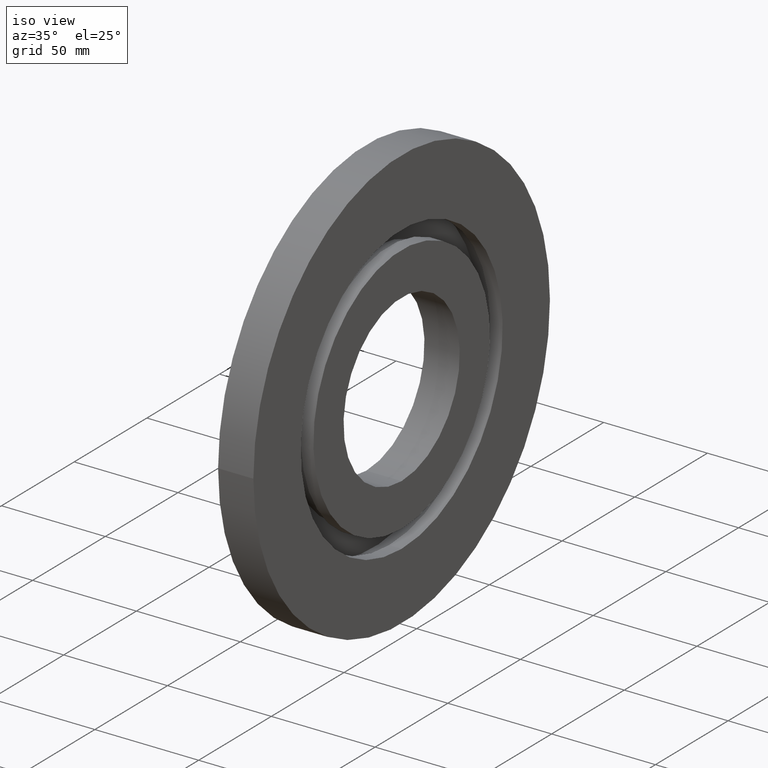
[diagram: clean part render]
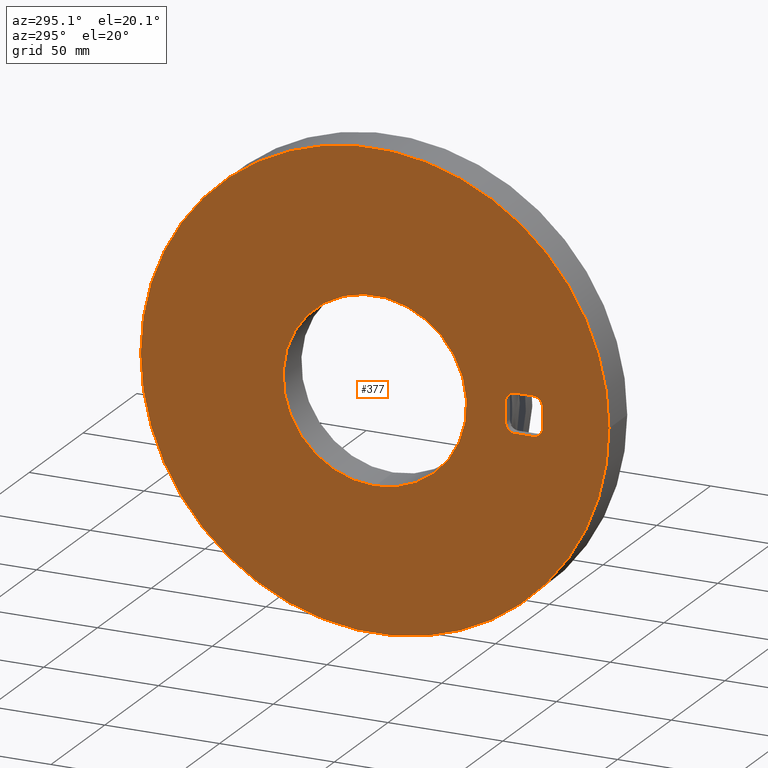
[diagram: tour spotlight — one face highlighted and labeled with its STEP entity id]
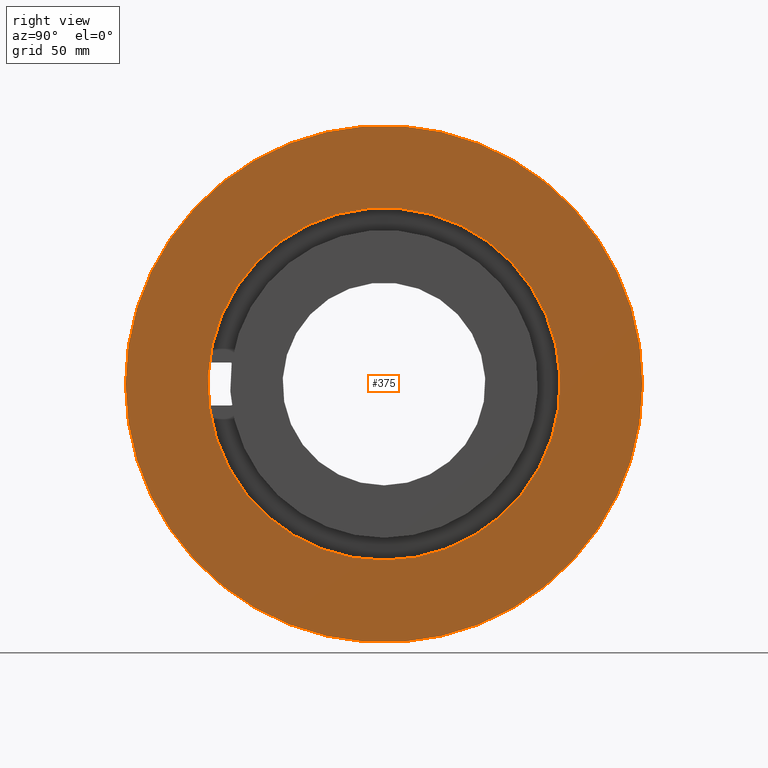
[diagram: tour spotlight — one face highlighted and labeled with its STEP entity id]
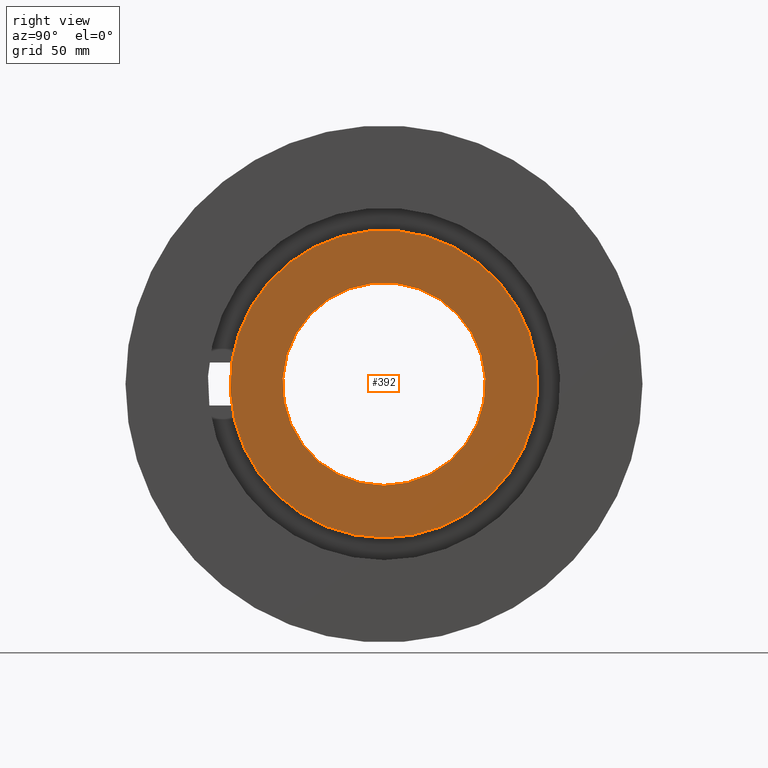
[diagram: tour spotlight — one face highlighted and labeled with its STEP entity id]
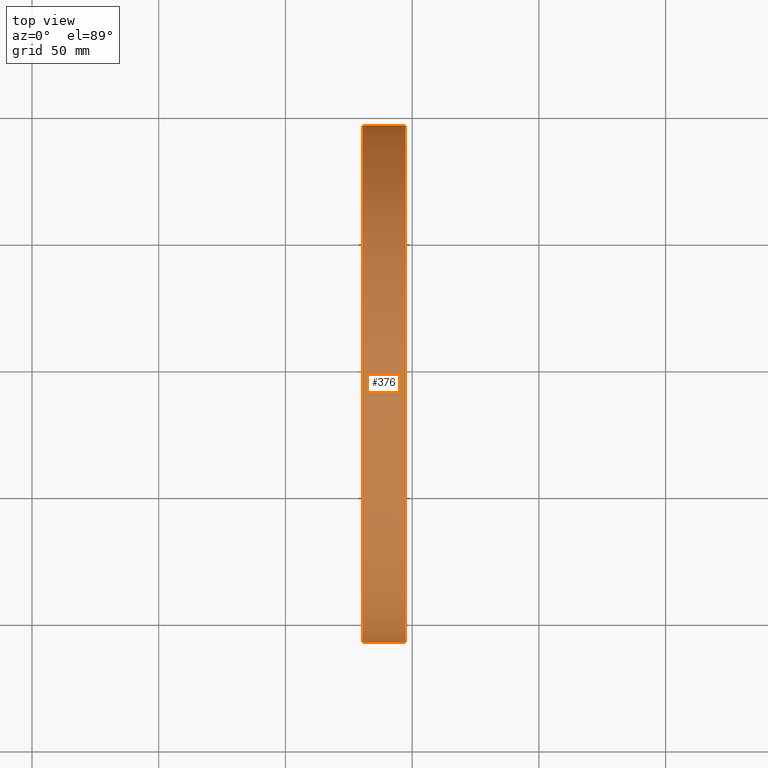
[diagram: tour spotlight — one face highlighted and labeled with its STEP entity id]
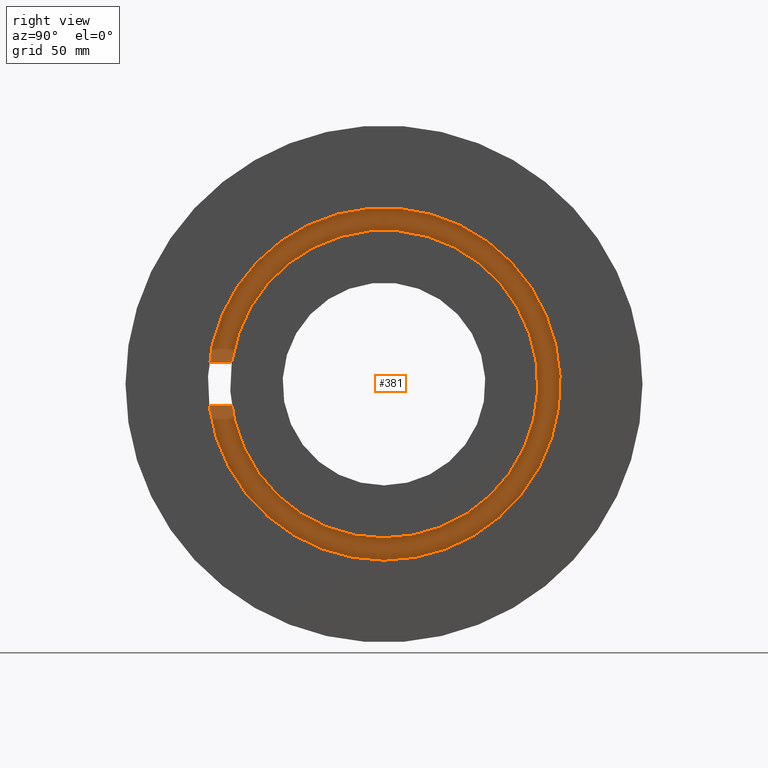
[diagram: tour spotlight — one face highlighted and labeled with its STEP entity id]
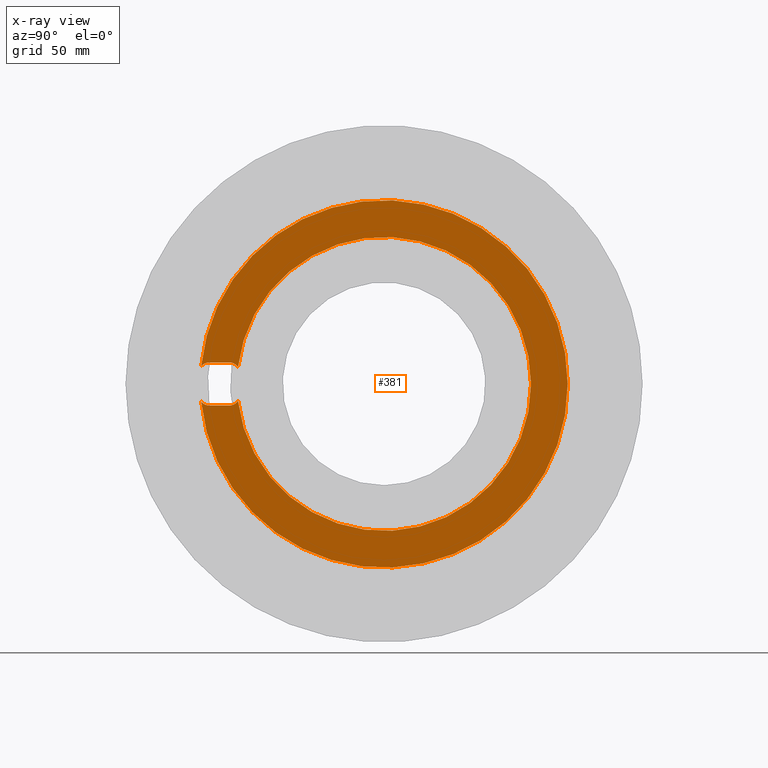
[diagram: x-ray of the same camera — body ghosted, this tour face saturated]
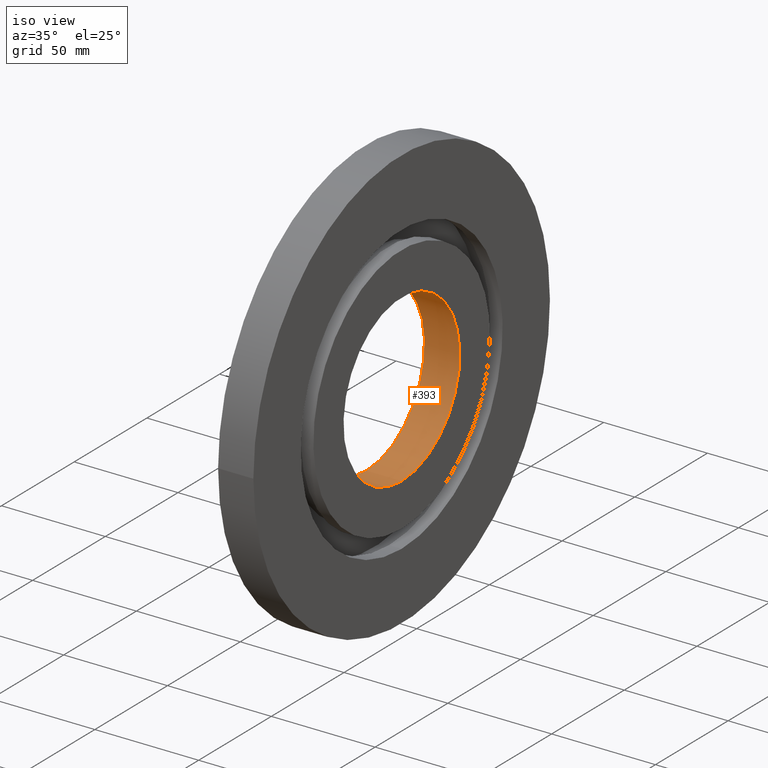
[diagram: tour spotlight — one face highlighted and labeled with its STEP entity id]
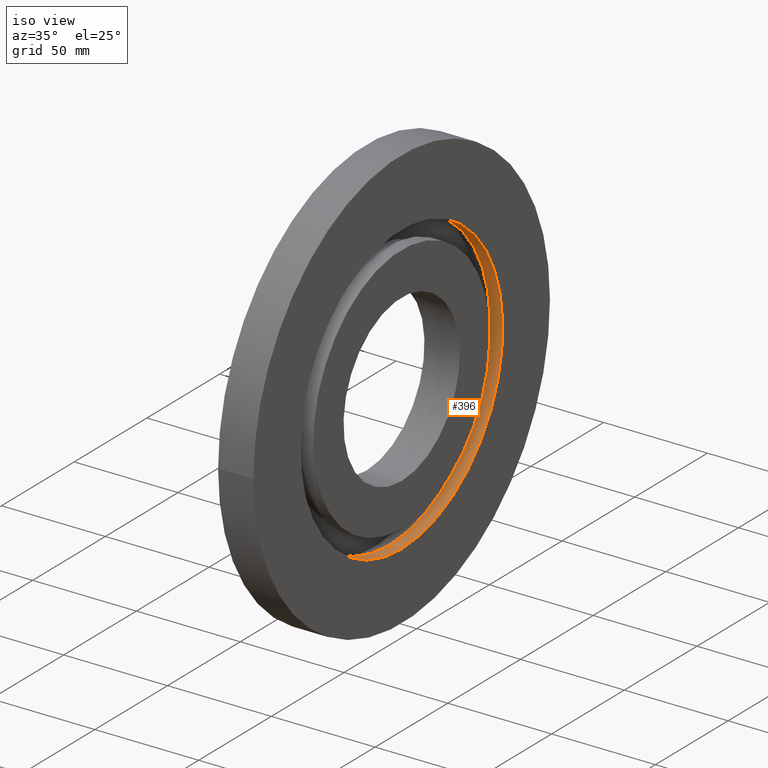
[diagram: tour spotlight — one face highlighted and labeled with its STEP entity id]
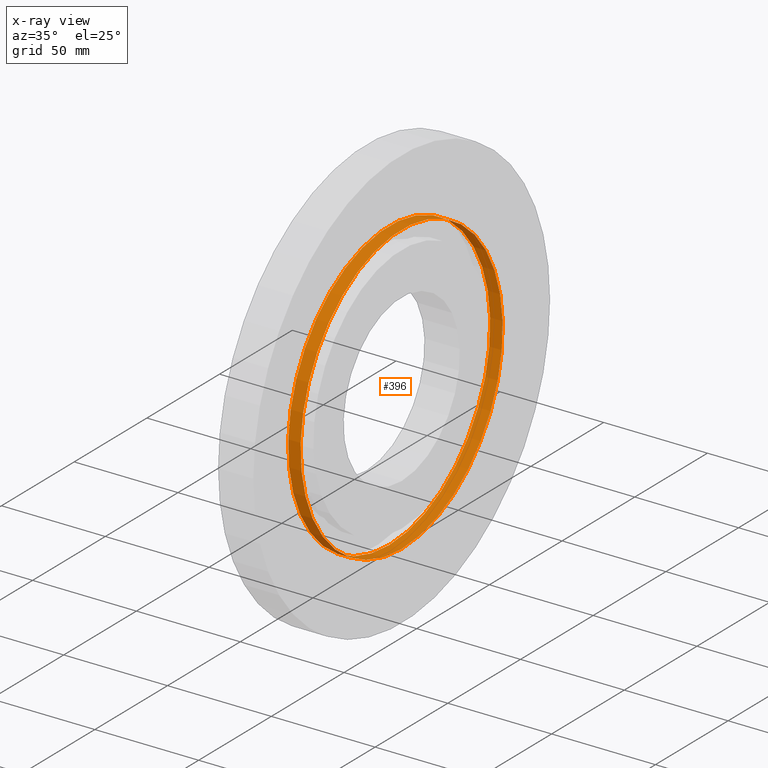
[diagram: x-ray of the same camera — body ghosted, this tour face saturated]
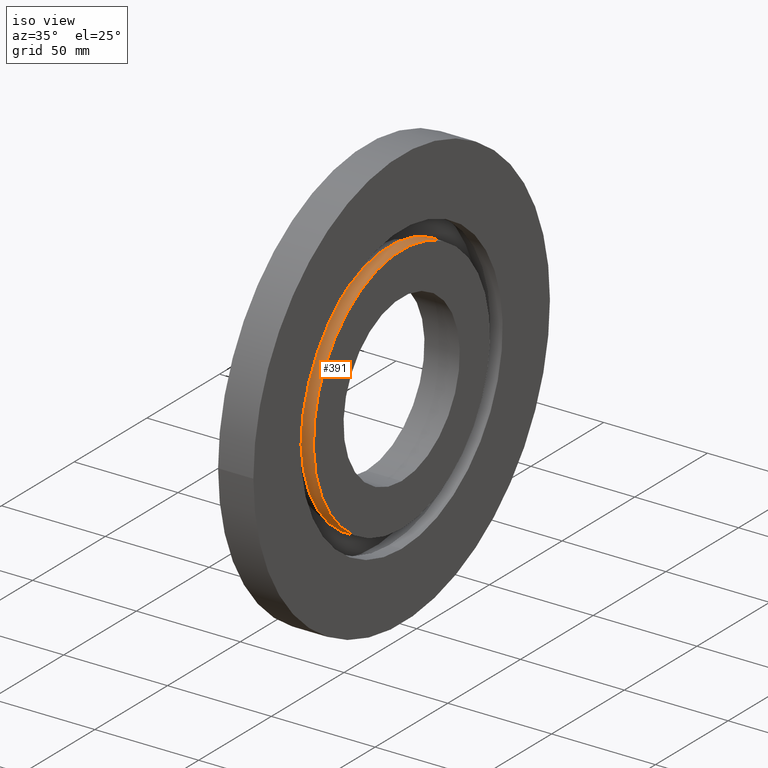
[diagram: tour spotlight — one face highlighted and labeled with its STEP entity id]
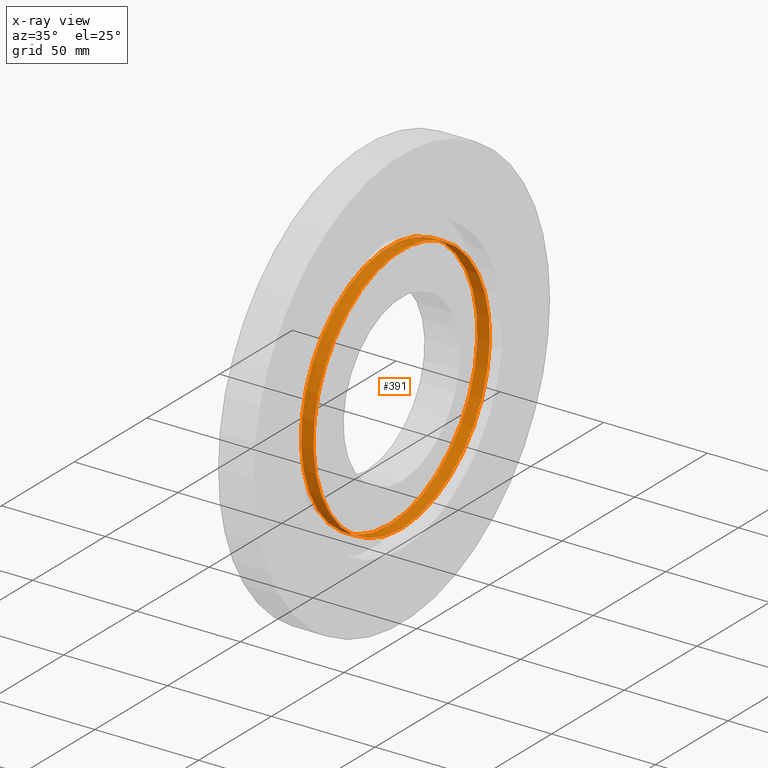
[diagram: x-ray of the same camera — body ghosted, this tour face saturated]
A machine part: a face-by-face anatomy tour. The part has 22 B-rep faces; the first image is the clean iso view, then the 8 largest visible faces are spotlighted one at a time (largest first), each with its STEP entity span.

Face 1 — auxiliary view, entity #377. In plain terms, the highlighted planar face has unit normal (-1, 0, 0).
Definition (entity closure, byte-faithful):
#20=LINE('',#630,#46);
#21=LINE('',#634,#47);
#22=LINE('',#638,#48);
#23=LINE('',#642,#49);
#46=VECTOR('',#501,8.);
#47=VECTOR('',#504,9.);
#48=VECTOR('',#507,8.);
#49=VECTOR('',#510,9.);
#82=FACE_BOUND('',#113,.T.);
#83=FACE_BOUND('',#114,.T.);
#89=FACE_OUTER_BOUND('',#112,.T.);
#112=EDGE_LOOP('',(#261));
#113=EDGE_LOOP('',(#262,#263,#264,#265,#266,#267,#268,#269));
#114=EDGE_LOOP('',(#270));
#139=CIRCLE('',#437,102.);
#140=CIRCLE('',#439,4.);
#141=CIRCLE('',#440,4.);
#142=CIRCLE('',#441,4.);
#143=CIRCLE('',#442,4.);
#144=CIRCLE('',#443,40.);
#167=VERTEX_POINT('',#624);
#168=VERTEX_POINT('',#628);
#169=VERTEX_POINT('',#629);
#170=VERTEX_POINT('',#631);
#171=VERTEX_POINT('',#633);
#172=VERTEX_POINT('',#635);
#173=VERTEX_POINT('',#637);
#174=VERTEX_POINT('',#639);
#175=VERTEX_POINT('',#641);
#176=VERTEX_POINT('',#644);
#203=EDGE_CURVE('',#167,#167,#139,.T.);
#205=EDGE_CURVE('',#168,#169,#20,.T.);
#206=EDGE_CURVE('',#168,#170,#140,.T.);
#207=EDGE_CURVE('',#171,#170,#21,.T.);
#208=EDGE_CURVE('',#171,#172,#141,.T.);
#209=EDGE_CURVE('',#173,#172,#22,.T.);
#210=EDGE_CURVE('',#173,#174,#142,.T.);
#211=EDGE_CURVE('',#175,#174,#23,.T.);
#212=EDGE_CURVE('',#175,#169,#143,.T.);
#213=EDGE_CURVE('',#176,#176,#144,.T.);
#261=ORIENTED_EDGE('',*,*,#203,.F.);
#262=ORIENTED_EDGE('',*,*,#205,.F.);
#263=ORIENTED_EDGE('',*,*,#206,.T.);
#264=ORIENTED_EDGE('',*,*,#207,.F.);
#265=ORIENTED_EDGE('',*,*,#208,.T.);
#266=ORIENTED_EDGE('',*,*,#209,.F.);
#267=ORIENTED_EDGE('',*,*,#210,.T.);
#268=ORIENTED_EDGE('',*,*,#211,.F.);
#269=ORIENTED_EDGE('',*,*,#212,.T.);
#270=ORIENTED_EDGE('',*,*,#213,.T.);
#364=PLANE('',#438);
#377=ADVANCED_FACE('',(#89,#82,#83),#364,.T.);
#437=AXIS2_PLACEMENT_3D('',#625,#496,#497);
#438=AXIS2_PLACEMENT_3D('',#627,#499,#500);
#439=AXIS2_PLACEMENT_3D('',#632,#502,#503);
#440=AXIS2_PLACEMENT_3D('',#636,#505,#506);
#441=AXIS2_PLACEMENT_3D('',#640,#508,#509);
#442=AXIS2_PLACEMENT_3D('',#643,#511,#512);
#443=AXIS2_PLACEMENT_3D('',#645,#513,#514);
#496=DIRECTION('center_axis',(1.,0.,0.));
#497=DIRECTION('ref_axis',(0.,1.,0.));
#499=DIRECTION('center_axis',(-1.,0.,0.));
#500=DIRECTION('ref_axis',(0.,0.,1.));
#501=DIRECTION('',(0.,1.,0.));
#502=DIRECTION('center_axis',(1.,0.,0.));
#503=DIRECTION('ref_axis',(0.,0.,1.));
#504=DIRECTION('',(0.,0.,1.));
#505=DIRECTION('center_axis',(1.,0.,0.));
#506=DIRECTION('ref_axis',(0.,-1.,0.));
#507=DIRECTION('',(0.,-1.,0.));
#508=DIRECTION('center_axis',(1.,0.,0.));
#509=DIRECTION('ref_axis',(0.,0.,-1.));
#510=DIRECTION('',(0.,0.,-1.));
#511=DIRECTION('center_axis',(1.,0.,0.));
#512=DIRECTION('ref_axis',(0.,1.,0.));
#513=DIRECTION('center_axis',(1.,0.,0.));
#514=DIRECTION('ref_axis',(0.,0.,1.));
#624=CARTESIAN_POINT('',(14.,-102.,-1.50990331349E-14));
#625=CARTESIAN_POINT('Origin',(14.,0.,0.));
#627=CARTESIAN_POINT('Origin',(14.,43.625,0.));
#628=CARTESIAN_POINT('',(14.,-69.,8.5));
#629=CARTESIAN_POINT('',(14.,-61.,8.5));
#630=CARTESIAN_POINT('',(14.,-69.,8.5));
#631=CARTESIAN_POINT('',(14.,-73.,4.5));
#632=CARTESIAN_POINT('Origin',(14.,-69.,4.5));
#633=CARTESIAN_POINT('',(14.,-73.,-4.5));
#634=CARTESIAN_POINT('',(14.,-73.,-4.5));
#635=CARTESIAN_POINT('',(14.,-69.,-8.5));
#636=CARTESIAN_POINT('Origin',(14.,-69.,-4.5));
#637=CARTESIAN_POINT('',(14.,-61.,-8.5));
#638=CARTESIAN_POINT('',(14.,-61.,-8.5));
#639=CARTESIAN_POINT('',(14.,-57.,-4.5));
#640=CARTESIAN_POINT('Origin',(14.,-61.,-4.5));
#641=CARTESIAN_POINT('',(14.,-57.,4.5));
#642=CARTESIAN_POINT('',(14.,-57.,4.5));
#643=CARTESIAN_POINT('Origin',(14.,-61.,4.5));
#644=CARTESIAN_POINT('',(14.,0.,-40.));
#645=CARTESIAN_POINT('Origin',(14.,0.,0.));

Face 2 — right view, entity #375. In plain terms, the highlighted planar face has unit normal (-1, 0, 0).
Definition (entity closure, byte-faithful):
#81=FACE_BOUND('',#110,.T.);
#87=FACE_OUTER_BOUND('',#109,.T.);
#109=EDGE_LOOP('',(#255));
#110=EDGE_LOOP('',(#256));
#137=CIRCLE('',#434,102.);
#138=CIRCLE('',#435,69.5);
#165=VERTEX_POINT('',#619);
#166=VERTEX_POINT('',#621);
#201=EDGE_CURVE('',#165,#165,#137,.T.);
#202=EDGE_CURVE('',#166,#166,#138,.T.);
#255=ORIENTED_EDGE('',*,*,#201,.T.);
#256=ORIENTED_EDGE('',*,*,#202,.T.);
#363=PLANE('',#433);
#375=ADVANCED_FACE('',(#87,#81),#363,.F.);
#433=AXIS2_PLACEMENT_3D('',#618,#488,#489);
#434=AXIS2_PLACEMENT_3D('',#620,#490,#491);
#435=AXIS2_PLACEMENT_3D('',#622,#492,#493);
#488=DIRECTION('center_axis',(-1.,0.,0.));
#489=DIRECTION('ref_axis',(0.,0.,1.));
#490=DIRECTION('center_axis',(1.,0.,0.));
#491=DIRECTION('ref_axis',(0.,1.,0.));
#492=DIRECTION('center_axis',(-1.,0.,0.));
#493=DIRECTION('ref_axis',(0.,0.,-1.));
#618=CARTESIAN_POINT('Origin',(31.,43.625,0.));
#619=CARTESIAN_POINT('',(31.,-102.,-1.50990331349E-14));
#620=CARTESIAN_POINT('Origin',(31.,0.,0.));
#621=CARTESIAN_POINT('',(31.,-8.51129525407411E-15,-69.5));
#622=CARTESIAN_POINT('Origin',(31.,0.,0.));

Face 3 — right view, entity #392. In plain terms, the highlighted planar face has unit normal (-1, 0, 0).
Definition (entity closure, byte-faithful):
#86=FACE_BOUND('',#132,.T.);
#104=FACE_OUTER_BOUND('',#131,.T.);
#131=EDGE_LOOP('',(#345));
#132=EDGE_LOOP('',(#346));
#163=CIRCLE('',#476,60.7);
#164=CIRCLE('',#478,40.);
#199=VERTEX_POINT('',#717);
#200=VERTEX_POINT('',#721);
#250=EDGE_CURVE('',#199,#199,#163,.T.);
#251=EDGE_CURVE('',#200,#200,#164,.T.);
#345=ORIENTED_EDGE('',*,*,#250,.T.);
#346=ORIENTED_EDGE('',*,*,#251,.T.);
#372=PLANE('',#477);
#392=ADVANCED_FACE('',(#104,#86),#372,.F.);
#476=AXIS2_PLACEMENT_3D('',#719,#597,#598);
#477=AXIS2_PLACEMENT_3D('',#720,#599,#600);
#478=AXIS2_PLACEMENT_3D('',#722,#601,#602);
#597=DIRECTION('center_axis',(1.,0.,0.));
#598=DIRECTION('ref_axis',(0.,0.,1.));
#599=DIRECTION('center_axis',(-1.,0.,0.));
#600=DIRECTION('ref_axis',(0.,0.,1.));
#601=DIRECTION('center_axis',(-1.,0.,0.));
#602=DIRECTION('ref_axis',(0.,0.,-1.));
#717=CARTESIAN_POINT('',(31.,0.,-60.7));
#719=CARTESIAN_POINT('Origin',(31.,0.,0.));
#720=CARTESIAN_POINT('Origin',(31.,43.625,0.));
#721=CARTESIAN_POINT('',(31.,0.,-40.));
#722=CARTESIAN_POINT('Origin',(31.,0.,0.));

Face 4 — top view, entity #376. In plain terms, the highlighted cylindrical surface (bore or boss wall) has radius 102 mm, axis along (-1, 0, 0).
Definition (entity closure, byte-faithful):
#19=LINE('',#626,#45);
#45=VECTOR('',#498,102.);
#71=CYLINDRICAL_SURFACE('',#436,102.);
#88=FACE_OUTER_BOUND('',#111,.T.);
#111=EDGE_LOOP('',(#257,#258,#259,#260));
#137=CIRCLE('',#434,102.);
#139=CIRCLE('',#437,102.);
#165=VERTEX_POINT('',#619);
#167=VERTEX_POINT('',#624);
#201=EDGE_CURVE('',#165,#165,#137,.T.);
#203=EDGE_CURVE('',#167,#167,#139,.T.);
#204=EDGE_CURVE('',#167,#165,#19,.T.);
#257=ORIENTED_EDGE('',*,*,#203,.T.);
#258=ORIENTED_EDGE('',*,*,#204,.T.);
#259=ORIENTED_EDGE('',*,*,#201,.F.);
#260=ORIENTED_EDGE('',*,*,#204,.F.);
#376=ADVANCED_FACE('',(#88),#71,.T.);
#434=AXIS2_PLACEMENT_3D('',#620,#490,#491);
#436=AXIS2_PLACEMENT_3D('',#623,#494,#495);
#437=AXIS2_PLACEMENT_3D('',#625,#496,#497);
#490=DIRECTION('center_axis',(1.,0.,0.));
#491=DIRECTION('ref_axis',(0.,1.,0.));
#494=DIRECTION('center_axis',(-1.,0.,0.));
#495=DIRECTION('ref_axis',(0.,1.,0.));
#496=DIRECTION('center_axis',(1.,0.,0.));
#497=DIRECTION('ref_axis',(0.,1.,0.));
#498=DIRECTION('',(1.,0.,0.));
#619=CARTESIAN_POINT('',(31.,-102.,-1.50990331349E-14));
#620=CARTESIAN_POINT('Origin',(31.,0.,0.));
#623=CARTESIAN_POINT('Origin',(303.1531853339,0.,0.));
#624=CARTESIAN_POINT('',(14.,-102.,-1.50990331349E-14));
#625=CARTESIAN_POINT('Origin',(14.,0.,0.));
#626=CARTESIAN_POINT('',(303.1531853339,-102.,1.2491397351303E-14));

Face 5 — right view, entity #381. An x-ray twin of the same camera follows (body ghosted, this face saturated) — the face is partly hidden behind the body. In plain terms, the highlighted planar face has unit normal (1, 0, 0).
Definition (entity closure, byte-faithful):
#25=LINE('',#650,#51);
#31=LINE('',#681,#57);
#51=VECTOR('',#518,8.);
#57=VECTOR('',#550,8.);
#93=FACE_OUTER_BOUND('',#118,.T.);
#118=EDGE_LOOP('',(#289,#290,#291,#292,#293,#294,#295,#296,#297,#298));
#145=CIRCLE('',#446,4.);
#148=CIRCLE('',#450,58.);
#150=CIRCLE('',#452,58.);
#151=CIRCLE('',#454,72.5);
#152=CIRCLE('',#455,72.5);
#153=CIRCLE('',#456,4.);
#154=CIRCLE('',#457,4.);
#155=CIRCLE('',#458,4.);
#177=VERTEX_POINT('',#647);
#178=VERTEX_POINT('',#649);
#180=VERTEX_POINT('',#654);
#183=VERTEX_POINT('',#663);
#185=VERTEX_POINT('',#668);
#186=VERTEX_POINT('',#672);
#187=VERTEX_POINT('',#673);
#188=VERTEX_POINT('',#675);
#189=VERTEX_POINT('',#678);
#190=VERTEX_POINT('',#680);
#215=EDGE_CURVE('',#177,#178,#25,.T.);
#218=EDGE_CURVE('',#177,#180,#145,.T.);
#223=EDGE_CURVE('',#180,#183,#148,.T.);
#226=EDGE_CURVE('',#183,#185,#150,.T.);
#227=EDGE_CURVE('',#186,#187,#151,.T.);
#228=EDGE_CURVE('',#187,#188,#152,.T.);
#229=EDGE_CURVE('',#188,#178,#153,.T.);
#230=EDGE_CURVE('',#185,#189,#154,.T.);
#231=EDGE_CURVE('',#190,#189,#31,.T.);
#232=EDGE_CURVE('',#190,#186,#155,.T.);
#289=ORIENTED_EDGE('',*,*,#227,.T.);
#290=ORIENTED_EDGE('',*,*,#228,.T.);
#291=ORIENTED_EDGE('',*,*,#229,.T.);
#292=ORIENTED_EDGE('',*,*,#215,.F.);
#293=ORIENTED_EDGE('',*,*,#218,.T.);
#294=ORIENTED_EDGE('',*,*,#223,.T.);
#295=ORIENTED_EDGE('',*,*,#226,.T.);
#296=ORIENTED_EDGE('',*,*,#230,.T.);
#297=ORIENTED_EDGE('',*,*,#231,.F.);
#298=ORIENTED_EDGE('',*,*,#232,.T.);
#366=PLANE('',#453);
#381=ADVANCED_FACE('',(#93),#366,.T.);
#446=AXIS2_PLACEMENT_3D('',#656,#523,#524);
#450=AXIS2_PLACEMENT_3D('',#665,#533,#534);
#452=AXIS2_PLACEMENT_3D('',#670,#538,#539);
#453=AXIS2_PLACEMENT_3D('',#671,#540,#541);
#454=AXIS2_PLACEMENT_3D('',#674,#542,#543);
#455=AXIS2_PLACEMENT_3D('',#676,#544,#545);
#456=AXIS2_PLACEMENT_3D('',#677,#546,#547);
#457=AXIS2_PLACEMENT_3D('',#679,#548,#549);
#458=AXIS2_PLACEMENT_3D('',#682,#551,#552);
#518=DIRECTION('',(0.,-1.,0.));
#523=DIRECTION('center_axis',(-1.,0.,0.));
#524=DIRECTION('ref_axis',(0.,0.,1.));
#533=DIRECTION('center_axis',(-1.,0.,0.));
#534=DIRECTION('ref_axis',(0.,-0.993430356347494,0.114438311274199));
#538=DIRECTION('center_axis',(-1.,0.,0.));
#539=DIRECTION('ref_axis',(0.,-0.993430356347494,0.114438311274199));
#540=DIRECTION('center_axis',(1.,0.,0.));
#541=DIRECTION('ref_axis',(0.,-1.,0.));
#542=DIRECTION('center_axis',(1.,0.,0.));
#543=DIRECTION('ref_axis',(0.,1.,0.));
#544=DIRECTION('center_axis',(1.,0.,0.));
#545=DIRECTION('ref_axis',(0.,1.,0.));
#546=DIRECTION('center_axis',(-1.,0.,0.));
#547=DIRECTION('ref_axis',(0.,-0.791677911436083,0.610938691313787));
#548=DIRECTION('center_axis',(-1.,0.,0.));
#549=DIRECTION('ref_axis',(0.,0.845259832961315,-0.534355513476009));
#550=DIRECTION('',(0.,1.,0.));
#551=DIRECTION('center_axis',(-1.,0.,0.));
#552=DIRECTION('ref_axis',(0.,0.,-1.));
#647=CARTESIAN_POINT('',(17.5,-61.,8.5));
#649=CARTESIAN_POINT('',(17.5,-69.,8.5));
#650=CARTESIAN_POINT('',(17.5,-61.,8.5));
#654=CARTESIAN_POINT('',(17.5,-57.61896066815,6.637422053904));
#656=CARTESIAN_POINT('Origin',(17.5,-61.,4.5));
#663=CARTESIAN_POINT('',(17.5,58.,7.10295143505465E-15));
#665=CARTESIAN_POINT('Origin',(17.5,0.,0.));
#668=CARTESIAN_POINT('',(17.5,-57.61896066815,-6.637422053904));
#670=CARTESIAN_POINT('Origin',(17.5,0.,0.));
#671=CARTESIAN_POINT('Origin',(17.5,0.,-64.));
#672=CARTESIAN_POINT('',(17.5,-72.16671164574,-6.943754765255));
#673=CARTESIAN_POINT('',(17.5,72.5,8.87868929381831E-15));
#674=CARTESIAN_POINT('Origin',(17.5,0.,0.));
#675=CARTESIAN_POINT('',(17.5,-72.16671164574,6.943754765255));
#676=CARTESIAN_POINT('Origin',(17.5,0.,0.));
#677=CARTESIAN_POINT('Origin',(17.5,-69.,4.5));
#678=CARTESIAN_POINT('',(17.5,-61.,-8.5));
#679=CARTESIAN_POINT('Origin',(17.5,-61.,-4.5));
#680=CARTESIAN_POINT('',(17.5,-69.,-8.5));
#681=CARTESIAN_POINT('',(17.5,-69.,-8.5));
#682=CARTESIAN_POINT('Origin',(17.5,-69.,-4.5));

Face 6 — iso view, entity #393. In plain terms, the highlighted cylindrical surface (bore or boss wall) has radius 40 mm, axis along (-1, 0, 0).
Definition (entity closure, byte-faithful):
#42=LINE('',#724,#68);
#68=VECTOR('',#605,40.);
#79=CYLINDRICAL_SURFACE('',#479,40.);
#105=FACE_OUTER_BOUND('',#133,.T.);
#133=EDGE_LOOP('',(#347,#348,#349,#350));
#144=CIRCLE('',#443,40.);
#164=CIRCLE('',#478,40.);
#176=VERTEX_POINT('',#644);
#200=VERTEX_POINT('',#721);
#213=EDGE_CURVE('',#176,#176,#144,.T.);
#251=EDGE_CURVE('',#200,#200,#164,.T.);
#252=EDGE_CURVE('',#200,#176,#42,.T.);
#347=ORIENTED_EDGE('',*,*,#251,.F.);
#348=ORIENTED_EDGE('',*,*,#252,.T.);
#349=ORIENTED_EDGE('',*,*,#213,.F.);
#350=ORIENTED_EDGE('',*,*,#252,.F.);
#393=ADVANCED_FACE('',(#105),#79,.F.);
#443=AXIS2_PLACEMENT_3D('',#645,#513,#514);
#478=AXIS2_PLACEMENT_3D('',#722,#601,#602);
#479=AXIS2_PLACEMENT_3D('',#723,#603,#604);
#513=DIRECTION('center_axis',(1.,0.,0.));
#514=DIRECTION('ref_axis',(0.,0.,1.));
#601=DIRECTION('center_axis',(-1.,0.,0.));
#602=DIRECTION('ref_axis',(0.,0.,-1.));
#603=DIRECTION('center_axis',(-1.,0.,0.));
#604=DIRECTION('ref_axis',(0.,0.,1.));
#605=DIRECTION('',(-1.,0.,0.));
#644=CARTESIAN_POINT('',(14.,0.,-40.));
#645=CARTESIAN_POINT('Origin',(14.,0.,0.));
#721=CARTESIAN_POINT('',(31.,0.,-40.));
#722=CARTESIAN_POINT('Origin',(31.,0.,0.));
#723=CARTESIAN_POINT('Origin',(31.,0.,0.));
#724=CARTESIAN_POINT('',(31.,-4.89858719658941E-15,-40.));

Face 7 — iso view, entity #396. An x-ray twin of the same camera follows (body ghosted, this face saturated) — the face is partly hidden behind the body. In plain terms, the highlighted cylindrical surface (bore or boss wall) has radius 69.5 mm, axis along (-1, 0, 0).
Definition (entity closure, byte-faithful):
#44=LINE('',#729,#70);
#70=VECTOR('',#613,69.5);
#80=CYLINDRICAL_SURFACE('',#482,69.5);
#108=FACE_OUTER_BOUND('',#136,.T.);
#136=EDGE_LOOP('',(#359,#360,#361,#362));
#138=CIRCLE('',#435,69.5);
#158=CIRCLE('',#463,69.5);
#166=VERTEX_POINT('',#621);
#194=VERTEX_POINT('',#693);
#202=EDGE_CURVE('',#166,#166,#138,.T.);
#238=EDGE_CURVE('',#194,#194,#158,.T.);
#254=EDGE_CURVE('',#166,#194,#44,.T.);
#359=ORIENTED_EDGE('',*,*,#202,.F.);
#360=ORIENTED_EDGE('',*,*,#254,.T.);
#361=ORIENTED_EDGE('',*,*,#238,.F.);
#362=ORIENTED_EDGE('',*,*,#254,.F.);
#396=ADVANCED_FACE('',(#108),#80,.F.);
#435=AXIS2_PLACEMENT_3D('',#622,#492,#493);
#463=AXIS2_PLACEMENT_3D('',#694,#564,#565);
#482=AXIS2_PLACEMENT_3D('',#728,#611,#612);
#492=DIRECTION('center_axis',(-1.,0.,0.));
#493=DIRECTION('ref_axis',(0.,0.,-1.));
#564=DIRECTION('center_axis',(1.,0.,0.));
#565=DIRECTION('ref_axis',(0.,0.,1.));
#611=DIRECTION('center_axis',(-1.,0.,0.));
#612=DIRECTION('ref_axis',(0.,0.,1.));
#613=DIRECTION('',(-1.,0.,0.));
#621=CARTESIAN_POINT('',(31.,-8.51129525407411E-15,-69.5));
#622=CARTESIAN_POINT('Origin',(31.,0.,0.));
#693=CARTESIAN_POINT('',(25.,-8.51129525407411E-15,-69.5));
#694=CARTESIAN_POINT('Origin',(25.,0.,0.));
#728=CARTESIAN_POINT('Origin',(46.,0.,0.));
#729=CARTESIAN_POINT('',(46.,-8.51129525407411E-15,-69.5));

Face 8 — iso view, entity #391. An x-ray twin of the same camera follows (body ghosted, this face saturated) — the face is partly hidden behind the body. In plain terms, the highlighted cylindrical surface (bore or boss wall) has radius 60.7 mm, axis along (-1, 0, 0).
Definition (entity closure, byte-faithful):
#41=LINE('',#718,#67);
#67=VECTOR('',#596,60.7);
#78=CYLINDRICAL_SURFACE('',#475,60.7);
#103=FACE_OUTER_BOUND('',#130,.T.);
#130=EDGE_LOOP('',(#341,#342,#343,#344));
#162=CIRCLE('',#474,60.7);
#163=CIRCLE('',#476,60.7);
#198=VERTEX_POINT('',#714);
#199=VERTEX_POINT('',#717);
#248=EDGE_CURVE('',#198,#198,#162,.T.);
#249=EDGE_CURVE('',#198,#199,#41,.T.);
#250=EDGE_CURVE('',#199,#199,#163,.T.);
#341=ORIENTED_EDGE('',*,*,#248,.F.);
#342=ORIENTED_EDGE('',*,*,#249,.T.);
#343=ORIENTED_EDGE('',*,*,#250,.F.);
#344=ORIENTED_EDGE('',*,*,#249,.F.);
#391=ADVANCED_FACE('',(#103),#78,.T.);
#474=AXIS2_PLACEMENT_3D('',#715,#592,#593);
#475=AXIS2_PLACEMENT_3D('',#716,#594,#595);
#476=AXIS2_PLACEMENT_3D('',#719,#597,#598);
#592=DIRECTION('center_axis',(-1.,0.,0.));
#593=DIRECTION('ref_axis',(0.,0.,-1.));
#594=DIRECTION('center_axis',(-1.,0.,0.));
#595=DIRECTION('ref_axis',(0.,0.,1.));
#596=DIRECTION('',(1.,0.,0.));
#597=DIRECTION('center_axis',(1.,0.,0.));
#598=DIRECTION('ref_axis',(0.,0.,1.));
#714=CARTESIAN_POINT('',(25.,0.,-60.7));
#715=CARTESIAN_POINT('Origin',(25.,0.,0.));
#716=CARTESIAN_POINT('Origin',(46.,0.,0.));
#717=CARTESIAN_POINT('',(31.,0.,-60.7));
#718=CARTESIAN_POINT('',(46.,-7.43360607082443E-15,-60.7));
#719=CARTESIAN_POINT('Origin',(31.,0.,0.));